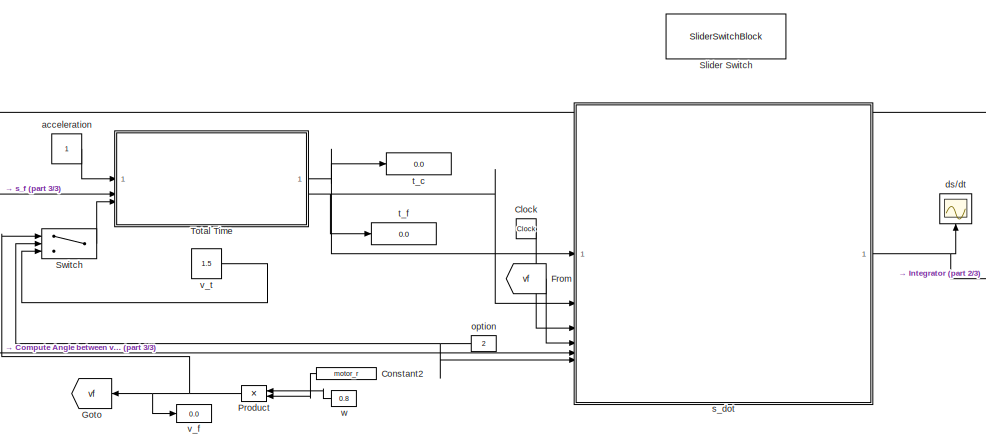
[diagram: root canvas - part 1/3, center side, full height]
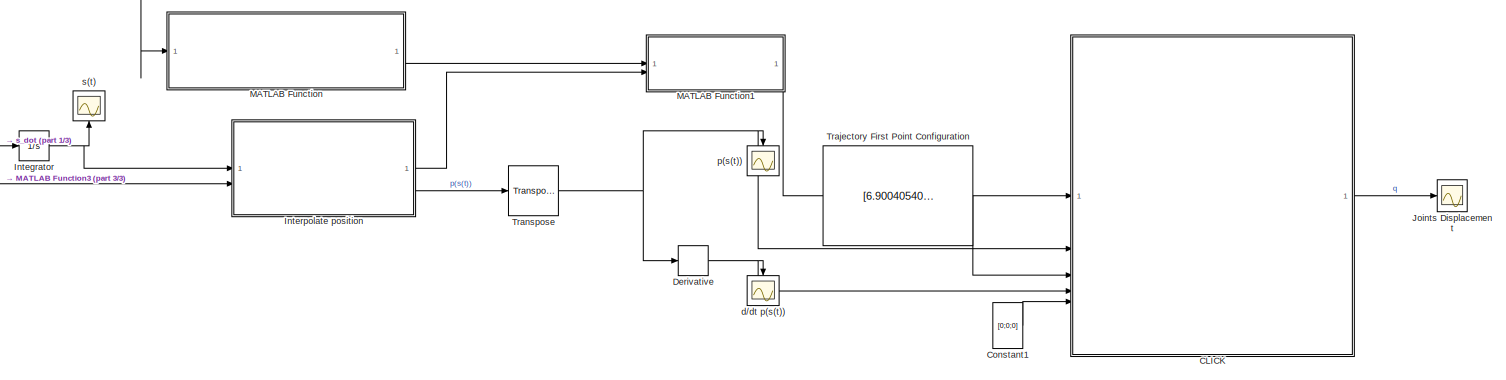
[diagram: root canvas - part 2/3, middle right region]
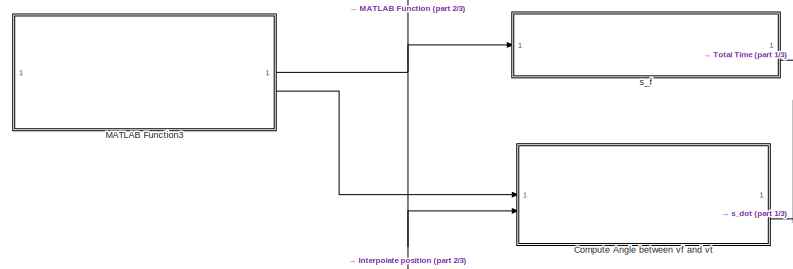
[diagram: root canvas - part 3/3, middle left region]
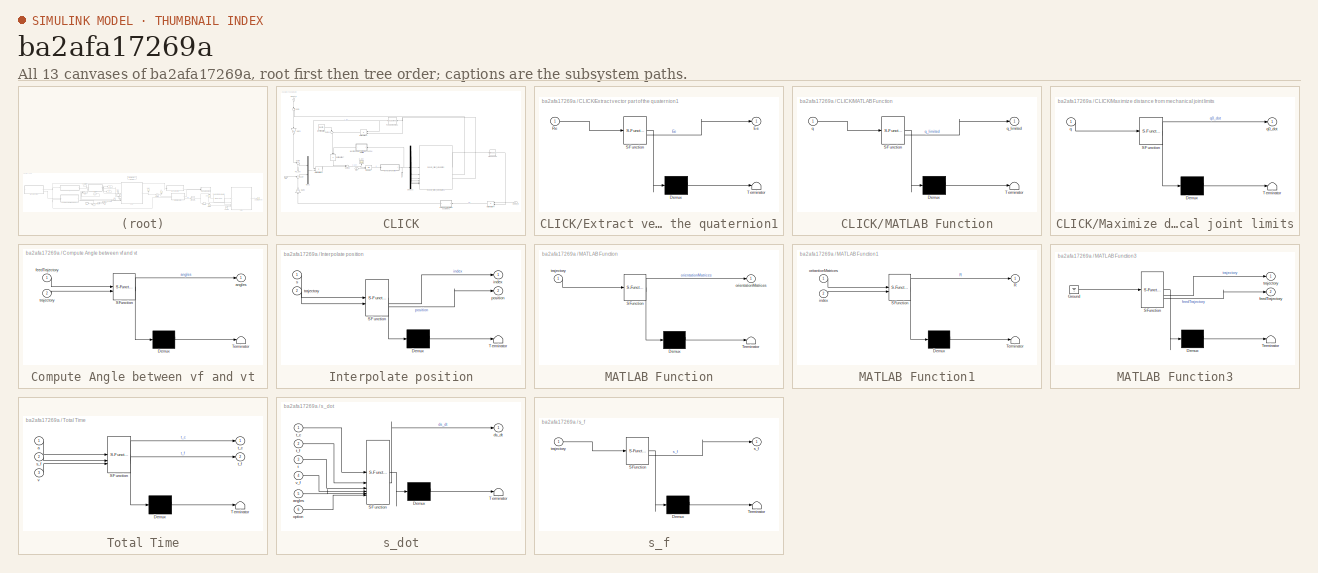
[diagram: thumbnail index - all 13 canvases of the model, root first then tree order]
MODEL slx_ba2afa17269a
KIND model
CONFIG AbsTol = auto
CONFIG EnableMultiTasking = off
CONFIG FixedStep = auto
CONFIG MaxStep = 1e-3
CONFIG MinStep = 1e-5
CONFIG RelTol = 1e-3
CONFIG SampleTimeConstraint = Unconstrained
CONFIG SolverName = ode45
CONFIG StartTime = 0.0
CONFIG StopTime = 16.85
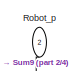
[diagram: CLICK - part 1/4, top left region]
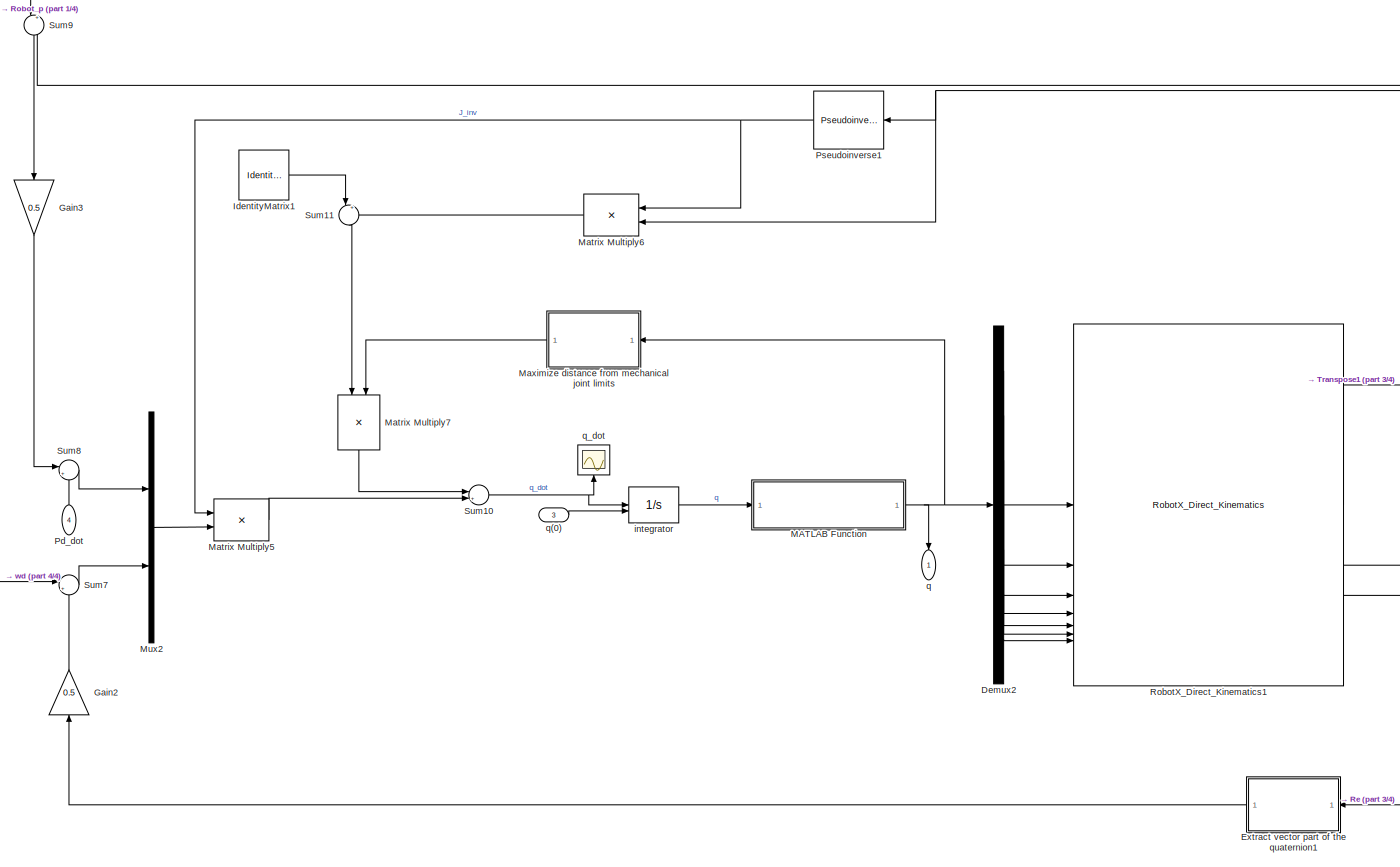
[diagram: CLICK - part 2/4, center side, full height]
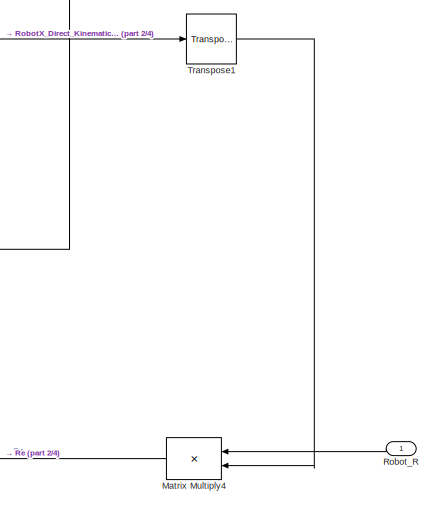
[diagram: CLICK - part 3/4, bottom right region]
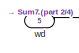
[diagram: CLICK - part 4/4, bottom left region]
BLOCK [SubSystem] CLICK
BLOCK [Demux] CLICK/Demux2
  Outputs = 7
BLOCK [SubSystem] CLICK/Extract vector part of the quaternion1
  ErrorFcn = Stateflow.Translate.translate
  NameLocation = top
  PermitHierarchicalResolution = ExplicitOnly
  SFBlockType = MATLAB Function
  TreatAsAtomicUnit = on
BLOCK [Demux] CLICK/Extract vector part of the quaternion1/ Demux 
  Outputs = 1
BLOCK [S-Function] CLICK/Extract vector part of the quaternion1/ SFunction 
  EnableBusSupport = on
  FunctionName = sf_sfun
  PortCounts = [1 2]
  SFcnIsStateOwnerBlock = off
  SFunctionDeploymentMode = off
  Tag = Stateflow S-Function 2
BLOCK [Terminator] CLICK/Extract vector part of the quaternion1/ Terminator 
BLOCK [Outport] CLICK/Extract vector part of the quaternion1/Ee
BLOCK [Inport] CLICK/Extract vector part of the quaternion1/Re
BLOCK [Gain] CLICK/Gain2
  Gain = 0.5
  NameLocation = right
BLOCK [Gain] CLICK/Gain3
  Gain = 0.5
  NameLocation = right
BLOCK [IdentityMatrix] CLICK/IdentityMatrix1
  OutputDimensions = 7
BLOCK [SubSystem] CLICK/MATLAB Function
  ErrorFcn = Stateflow.Translate.translate
  PermitHierarchicalResolution = ExplicitOnly
  SFBlockType = MATLAB Function
  TreatAsAtomicUnit = on
BLOCK [Demux] CLICK/MATLAB Function/ Demux 
  Outputs = 1
BLOCK [S-Function] CLICK/MATLAB Function/ SFunction 
  EnableBusSupport = on
  FunctionName = sf_sfun
  PortCounts = [1 2]
  SFcnIsStateOwnerBlock = off
  SFunctionDeploymentMode = off
  Tag = Stateflow S-Function 10
BLOCK [Terminator] CLICK/MATLAB Function/ Terminator 
BLOCK [Inport] CLICK/MATLAB Function/q
BLOCK [Outport] CLICK/MATLAB Function/q_limited
BLOCK [Product] CLICK/Matrix Multiply4
  Multiplication = Matrix(*)
BLOCK [Product] CLICK/Matrix Multiply5
  Multiplication = Matrix(*)
BLOCK [Product] CLICK/Matrix Multiply6
  Multiplication = Matrix(*)
BLOCK [Product] CLICK/Matrix Multiply7
  Multiplication = Matrix(*)
  NameLocation = left
BLOCK [SubSystem] CLICK/Maximize distance from mechanical joint limits
  ErrorFcn = Stateflow.Translate.translate
  NameLocation = top
  PermitHierarchicalResolution = ExplicitOnly
  SFBlockType = MATLAB Function
  TreatAsAtomicUnit = on
BLOCK [Demux] CLICK/Maximize distance from mechanical joint limits/ Demux 
  Outputs = 1
BLOCK [S-Function] CLICK/Maximize distance from mechanical joint limits/ SFunction 
  EnableBusSupport = on
  FunctionName = sf_sfun
  PortCounts = [1 2]
  SFcnIsStateOwnerBlock = off
  SFunctionDeploymentMode = off
  Tag = Stateflow S-Function 7
BLOCK [Terminator] CLICK/Maximize distance from mechanical joint limits/ Terminator 
BLOCK [Inport] CLICK/Maximize distance from mechanical joint limits/q
BLOCK [Outport] CLICK/Maximize distance from mechanical joint limits/q0_dot
BLOCK [Mux] CLICK/Mux2
  DisplayOption = bar
  Inputs = 2
BLOCK [Inport] CLICK/Pd_dot
  NameLocation = right
  Port = 4
BLOCK [Reference] CLICK/Pseudoinverse1  REF=dspinverses/Pseudoinverse
  SourceBlock = dspinverses/Pseudoinverse
  SourceType = Pseudoinverse
BLOCK [Reference] CLICK/RobotX_Direct_Kinematics1  REF=RobotX_Lib/RobotX_Direct_Kinematics
  SourceBlock = RobotX_Lib/RobotX_Direct_Kinematics
  SourceType = SubSystem
BLOCK [Inport] CLICK/Robot_R
  NameLocation = top
BLOCK [Inport] CLICK/Robot_p
  NameLocation = left
  Port = 2
BLOCK [Sum] CLICK/Sum10
  Inputs = |++
BLOCK [Sum] CLICK/Sum11
  Inputs = |+-
  NameLocation = right
BLOCK [Sum] CLICK/Sum7
  Inputs = |++
BLOCK [Sum] CLICK/Sum8
  Inputs = |++
  NameLocation = top
BLOCK [Sum] CLICK/Sum9
  Inputs = |+-
  NameLocation = right
BLOCK [Reference] CLICK/Transpose1  REF=matrix_library/Transpose
  LibrarySourceBlock = simulink/Matrix\nOperations/Transpose
  SourceBlock = matrix_library/Transpose
  SourceType = Transpose
BLOCK [Integrator] CLICK/integrator
  InitialConditionSource = external
BLOCK [Outport] CLICK/q
  NameLocation = left
BLOCK [Inport] CLICK/q(0)
  Port = 3
BLOCK [Scope] CLICK/q_dot
  Floating = off
  NameLocation = right
  NumInputPorts = 1
  ScopeSpecificationString = Simulink.scopes.TimeScopeBlockCfg('CurrentConfiguration', extmgr.ConfigurationSet(extmgr.Configuration('Core','General UI',true),extmgr.Configuration('Core','Source UI',true),extmgr.Configuration('Sources','WiredSimulink',true,'DataLoggingVariableName','ScopeData2'),extmgr.Configuration('Visuals','Time Domain',true,'SerializedDisplays',{struct('MinYLimReal','-746083.85388','MaxYLimReal','696630.19...<+1581ch>
BLOCK [Inport] CLICK/wd
  Port = 5
BLOCK [Clock] Clock
BLOCK [SubSystem] Compute Angle between vf and vt
  ErrorFcn = Stateflow.Translate.translate
  PermitHierarchicalResolution = ExplicitOnly
  SFBlockType = MATLAB Function
  TreatAsAtomicUnit = on
BLOCK [Demux] Compute Angle between vf and vt/ Demux 
  Outputs = 1
BLOCK [S-Function] Compute Angle between vf and vt/ SFunction 
  EnableBusSupport = on
  FunctionName = sf_sfun
  PortCounts = [2 2]
  SFcnIsStateOwnerBlock = off
  SFunctionDeploymentMode = off
  Tag = Stateflow S-Function 4
BLOCK [Terminator] Compute Angle between vf and vt/ Terminator 
BLOCK [Outport] Compute Angle between vf and vt/angles
BLOCK [Inport] Compute Angle between vf and vt/feedTrajectory
BLOCK [Inport] Compute Angle between vf and vt/trajectory
  Port = 2
BLOCK [Constant] Constant1
  Value = [0;0;0]
  VectorParams1D = off
BLOCK [Constant] Constant2
  NameLocation = top
  Value = motor_r
BLOCK [Derivative] Derivative
BLOCK [From] From
  GotoTag = vf
BLOCK [Goto] Goto
  GotoTag = vf
  NameLocation = top
BLOCK [Integrator] Integrator
BLOCK [SubSystem] Interpolate position
  ErrorFcn = Stateflow.Translate.translate
  PermitHierarchicalResolution = ExplicitOnly
  SFBlockType = MATLAB Function
  TreatAsAtomicUnit = on
BLOCK [Demux] Interpolate position/ Demux 
  Outputs = 1
BLOCK [S-Function] Interpolate position/ SFunction 
  EnableBusSupport = on
  FunctionName = sf_sfun
  PortCounts = [2 3]
  SFcnIsStateOwnerBlock = off
  SFunctionDeploymentMode = off
  Tag = Stateflow S-Function 1
BLOCK [Terminator] Interpolate position/ Terminator 
BLOCK [Outport] Interpolate position/index
BLOCK [Outport] Interpolate position/position
  Port = 2
BLOCK [Inport] Interpolate position/s
BLOCK [Inport] Interpolate position/trajectory
  Port = 2
BLOCK [Scope] Joints Displacement
  Floating = off
  NumInputPorts = 1
  ScopeSpecificationString = Simulink.scopes.TimeScopeBlockCfg('CurrentConfiguration', extmgr.ConfigurationSet(extmgr.Configuration('Core','General UI',true),extmgr.Configuration('Core','Source UI',true),extmgr.Configuration('Sources','WiredSimulink',true,'DataLoggingVariableName','ScopeData4'),extmgr.Configuration('Visuals','Time Domain',true,'SerializedDisplays',{struct('MinYLimReal','-89.46409','MaxYLimReal','17.61627','YL...<+1765ch>
BLOCK [SubSystem] MATLAB Function
  ErrorFcn = Stateflow.Translate.translate
  PermitHierarchicalResolution = ExplicitOnly
  SFBlockType = MATLAB Function
  TreatAsAtomicUnit = on
BLOCK [Demux] MATLAB Function/ Demux 
  Outputs = 1
BLOCK [S-Function] MATLAB Function/ SFunction 
  EnableBusSupport = on
  FunctionName = sf_sfun
  PortCounts = [1 2]
  SFcnIsStateOwnerBlock = off
  SFunctionDeploymentMode = off
  Tag = Stateflow S-Function 3
BLOCK [Terminator] MATLAB Function/ Terminator 
BLOCK [Outport] MATLAB Function/orientationMatrices
BLOCK [Inport] MATLAB Function/trajectory
BLOCK [SubSystem] MATLAB Function1
  ErrorFcn = Stateflow.Translate.translate
  PermitHierarchicalResolution = ExplicitOnly
  SFBlockType = MATLAB Function
  TreatAsAtomicUnit = on
BLOCK [Demux] MATLAB Function1/ Demux 
  Outputs = 1
BLOCK [S-Function] MATLAB Function1/ SFunction 
  EnableBusSupport = on
  FunctionName = sf_sfun
  PortCounts = [2 2]
  SFcnIsStateOwnerBlock = off
  SFunctionDeploymentMode = off
  Tag = Stateflow S-Function 9
BLOCK [Terminator] MATLAB Function1/ Terminator 
BLOCK [Outport] MATLAB Function1/R
BLOCK [Inport] MATLAB Function1/index
  Port = 2
BLOCK [Inport] MATLAB Function1/oritantionMatrices
BLOCK [SubSystem] MATLAB Function3
  ErrorFcn = Stateflow.Translate.translate
  PermitHierarchicalResolution = ExplicitOnly
  SFBlockType = MATLAB Function
  TreatAsAtomicUnit = on
BLOCK [Demux] MATLAB Function3/ Demux 
  Outputs = 1
BLOCK [Ground] MATLAB Function3/ Ground 
BLOCK [S-Function] MATLAB Function3/ SFunction 
  EnableBusSupport = on
  FunctionName = sf_sfun
  PortCounts = [1 3]
  SFcnIsStateOwnerBlock = off
  SFunctionDeploymentMode = off
  Tag = Stateflow S-Function 11
BLOCK [Terminator] MATLAB Function3/ Terminator 
BLOCK [Outport] MATLAB Function3/feedTrajectory
  Port = 2
BLOCK [Outport] MATLAB Function3/trajectory
BLOCK [Product] Product
  NameLocation = top
BLOCK [SliderSwitchBlock] Slider Switch
BLOCK [Switch] Switch
  Criteria = u2 > Threshold
  InputSameDT = off
  SaturateOnIntegerOverflow = off
  Threshold = 1
BLOCK [SubSystem] Total Time
  ErrorFcn = Stateflow.Translate.translate
  PermitHierarchicalResolution = ExplicitOnly
  SFBlockType = MATLAB Function
  TreatAsAtomicUnit = on
BLOCK [Demux] Total Time/ Demux 
  Outputs = 1
BLOCK [S-Function] Total Time/ SFunction 
  EnableBusSupport = on
  FunctionName = sf_sfun
  PortCounts = [3 3]
  SFcnIsStateOwnerBlock = off
  SFunctionDeploymentMode = off
  Tag = Stateflow S-Function 6
BLOCK [Terminator] Total Time/ Terminator 
BLOCK [Inport] Total Time/a
BLOCK [Inport] Total Time/s_f
  Port = 2
BLOCK [Outport] Total Time/t_c
BLOCK [Outport] Total Time/t_f
  Port = 2
BLOCK [Inport] Total Time/v
  Port = 3
BLOCK [Constant] Trajectory First Point Configuration
  Value = [6.9004054003954; -2.9670597283904; -1.5692388175522; 0.11892147756857; 3.1666493237733; 0.13585718574299; 6.1086523819802]
  VectorParams1D = off
BLOCK [Reference] Transpose  REF=matrix_library/Transpose
  LibrarySourceBlock = simulink/Matrix\nOperations/Transpose
  SourceBlock = matrix_library/Transpose
  SourceType = Transpose
BLOCK [Constant] acceleration
BLOCK [Scope] d//dt p(s(t))
  Floating = off
  NameLocation = right
  NumInputPorts = 1
  ScopeSpecificationString = Simulink.scopes.TimeScopeBlockCfg('CurrentConfiguration', extmgr.ConfigurationSet(extmgr.Configuration('Core','General UI',true),extmgr.Configuration('Core','Source UI',true),extmgr.Configuration('Sources','WiredSimulink',true,'DataLoggingVariableName','ScopeData1'),extmgr.Configuration('Visuals','Time Domain',true,'SerializedDisplays',{struct('MinYLimReal','-5.13432','MaxYLimReal','9.63019','YLab...<+1677ch>
BLOCK [Scope] ds//dt
  Floating = off
  NameLocation = right
  NumInputPorts = 1
  ScopeSpecificationString = Simulink.scopes.TimeScopeBlockCfg('CurrentConfiguration', extmgr.ConfigurationSet(extmgr.Configuration('Core','General UI',true),extmgr.Configuration('Core','Source UI',true),extmgr.Configuration('Sources','WiredSimulink',true,'DataLoggingVariableName','ScopeData2'),extmgr.Configuration('Visuals','Time Domain',true,'SerializedDisplays',{struct('MinYLimReal','-1.00161','MaxYLimReal','9.01453','YLab...<+1551ch>
BLOCK [Constant] option
  NameLocation = top
  Value = 2
BLOCK [Scope] p(s(t))
  Floating = off
  NameLocation = right
  NumInputPorts = 1
  ScopeSpecificationString = Simulink.scopes.TimeScopeBlockCfg('CurrentConfiguration', extmgr.ConfigurationSet(extmgr.Configuration('Core','General UI',true),extmgr.Configuration('Core','Source UI',true),extmgr.Configuration('Sources','WiredSimulink',true,'DataLoggingVariableName','ScopeData3'),extmgr.Configuration('Visuals','Time Domain',true,'SerializedDisplays',{struct('MinYLimReal','-3.30978','MaxYLimReal','17.14801','YLa...<+1678ch>
BLOCK [Scope] s(t)
  Floating = off
  NameLocation = right
  NumInputPorts = 1
  ScopeSpecificationString = Simulink.scopes.TimeScopeBlockCfg('CurrentConfiguration', extmgr.ConfigurationSet(extmgr.Configuration('Core','General UI',true),extmgr.Configuration('Core','Source UI',true),extmgr.Configuration('Sources','WiredSimulink',true),extmgr.Configuration('Visuals','Time Domain',true,'SerializedDisplays',{struct('MinYLimReal','-3.44095','MaxYLimReal','30.96851','YLabelReal','','MinYLimMag','0.00000','Max...<+1544ch>
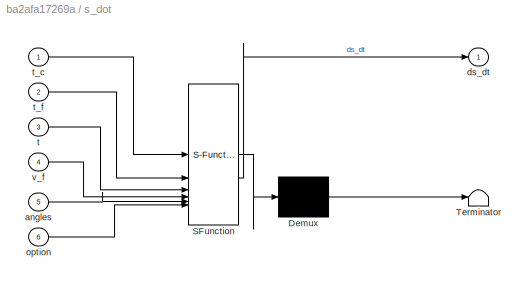
BLOCK [SubSystem] s_dot
  ErrorFcn = Stateflow.Translate.translate
  PermitHierarchicalResolution = ExplicitOnly
  SFBlockType = MATLAB Function
  TreatAsAtomicUnit = on
BLOCK [Demux] s_dot/ Demux 
  Outputs = 1
BLOCK [S-Function] s_dot/ SFunction 
  EnableBusSupport = on
  FunctionName = sf_sfun
  PortCounts = [6 2]
  SFcnIsStateOwnerBlock = off
  SFunctionDeploymentMode = off
  Tag = Stateflow S-Function 8
BLOCK [Terminator] s_dot/ Terminator 
BLOCK [Inport] s_dot/angles
  Port = 5
BLOCK [Outport] s_dot/ds_dt
BLOCK [Inport] s_dot/option
  Port = 6
BLOCK [Inport] s_dot/t
  Port = 3
BLOCK [Inport] s_dot/t_c
BLOCK [Inport] s_dot/t_f
  Port = 2
BLOCK [Inport] s_dot/v_f
  Port = 4
BLOCK [SubSystem] s_f
  ErrorFcn = Stateflow.Translate.translate
  PermitHierarchicalResolution = ExplicitOnly
  SFBlockType = MATLAB Function
  TreatAsAtomicUnit = on
BLOCK [Demux] s_f/ Demux 
  Outputs = 1
BLOCK [S-Function] s_f/ SFunction 
  EnableBusSupport = on
  FunctionName = sf_sfun
  PortCounts = [1 2]
  SFcnIsStateOwnerBlock = off
  SFunctionDeploymentMode = off
  Tag = Stateflow S-Function 5
BLOCK [Terminator] s_f/ Terminator 
BLOCK [Outport] s_f/s_f
  VectorParamsAs1DForOutWhenUnconnected = off
BLOCK [Inport] s_f/trajectory
BLOCK [Display] t_c
  Decimation = 1
BLOCK [Display] t_f
  Decimation = 1
BLOCK [Display] v_f
  Decimation = 1
BLOCK [Constant] v_t
  Value = 1.5
BLOCK [Constant] w
  NameLocation = top
  Value = 0.8
LINE CLICK/Demux2:1 -> CLICK/RobotX_Direct_Kinematics1:1
LINE CLICK/Demux2:2 -> CLICK/RobotX_Direct_Kinematics1:2
LINE CLICK/Demux2:3 -> CLICK/RobotX_Direct_Kinematics1:3
LINE CLICK/Demux2:4 -> CLICK/RobotX_Direct_Kinematics1:4
LINE CLICK/Demux2:5 -> CLICK/RobotX_Direct_Kinematics1:5
LINE CLICK/Demux2:6 -> CLICK/RobotX_Direct_Kinematics1:6
LINE CLICK/Demux2:7 -> CLICK/RobotX_Direct_Kinematics1:7
LINE CLICK/Extract vector part of the quaternion1:1 -> CLICK/Gain2:1
LINE CLICK/Gain2:1 -> CLICK/Sum7:2
LINE CLICK/Gain3:1 -> CLICK/Sum8:1
LINE CLICK/IdentityMatrix1:1 -> CLICK/Sum11:1
NET CLICK/MATLAB Function:1 -> CLICK/Demux2:1, CLICK/Maximize distance from mechanical joint limits:1, CLICK/q:1
LINE CLICK/Matrix Multiply4:1 -> CLICK/Extract vector part of the quaternion1:1
LINE CLICK/Matrix Multiply5:1 -> CLICK/Sum10:2
LINE CLICK/Matrix Multiply6:1 -> CLICK/Sum11:2
LINE CLICK/Matrix Multiply7:1 -> CLICK/Sum10:1
LINE CLICK/Maximize distance from mechanical joint limits:1 -> CLICK/Matrix Multiply7:2
LINE CLICK/Mux2:1 -> CLICK/Matrix Multiply5:2
LINE CLICK/Pd_dot:1 -> CLICK/Sum8:2
NET CLICK/Pseudoinverse1:1 -> CLICK/Matrix Multiply5:1, CLICK/Matrix Multiply6:1
LINE CLICK/RobotX_Direct_Kinematics1:1 -> CLICK/Transpose1:1
LINE CLICK/RobotX_Direct_Kinematics1:2 -> CLICK/Sum9:2
NET CLICK/RobotX_Direct_Kinematics1:3 -> CLICK/Matrix Multiply6:2, CLICK/Pseudoinverse1:1
LINE CLICK/Robot_R:1 -> CLICK/Matrix Multiply4:1
LINE CLICK/Robot_p:1 -> CLICK/Sum9:1
NET CLICK/Sum10:1 -> CLICK/integrator:1, CLICK/q_dot:1
LINE CLICK/Sum11:1 -> CLICK/Matrix Multiply7:1
LINE CLICK/Sum7:1 -> CLICK/Mux2:2
LINE CLICK/Sum8:1 -> CLICK/Mux2:1
LINE CLICK/Sum9:1 -> CLICK/Gain3:1
LINE CLICK/Transpose1:1 -> CLICK/Matrix Multiply4:2
LINE CLICK/integrator:1 -> CLICK/MATLAB Function:1
LINE CLICK/q(0):1 -> CLICK/integrator:2
LINE CLICK/wd:1 -> CLICK/Sum7:1
LINE CLICK:1 -> Joints Displacement:1
LINE Clock:1 -> s_dot:3
LINE Compute Angle between vf and vt:1 -> s_dot:5
LINE Constant1:1 -> CLICK:5
LINE Constant2:1 -> Product:2
NET Derivative:1 -> CLICK:4, d//dt p(s(t)):1
LINE From:1 -> s_dot:4
NET Integrator:1 -> Interpolate position:1, s(t):1
LINE Interpolate position:1 -> MATLAB Function1:2
LINE Interpolate position:2 -> Transpose:1
LINE MATLAB Function1:1 -> CLICK:1
NET MATLAB Function3:1 -> Compute Angle between vf and vt:2, Interpolate position:2, MATLAB Function:1, s_f:1
LINE MATLAB Function3:2 -> Compute Angle between vf and vt:1
LINE MATLAB Function:1 -> MATLAB Function1:1
NET Product:1 -> Goto:1, Switch:1, v_f:1
LINE Switch:1 -> Total Time:3
NET Total Time:1 -> s_dot:1, t_c:1
NET Total Time:2 -> s_dot:2, t_f:1
LINE Trajectory First Point Configuration:1 -> CLICK:3
NET Transpose:1 -> CLICK:2, Derivative:1, p(s(t)):1
LINE acceleration:1 -> Total Time:1
NET option:1 -> Switch:2, s_dot:6
NET s_dot:1 -> Integrator:1, ds//dt:1
LINE s_f:1 -> Total Time:2
LINE v_t:1 -> Switch:3
LINE w:1 -> Product:1
note: NET lines group one-source signal fan-out (src -> all destinations, sorted); 1:1 wires keep LINE
CHART MATLAB Function3 states=1 transitions=1
  STATE_LABEL 'eML_blk_kernel()'
  STATE_LABEL "SCRIPT:\nfunction [trajectory, feedTrajectory] = loadTrajectories()\n    % Load trajectories from the MAT-file\n    data = load('trajectoryData.mat');\n    trajectory = data.trajectory;\n\n    data = load('feedTrajectoryData.mat');\n    feedTrajectory = data.feedTrajectory;\nend"
CHART Interpolate position states=1 transitions=1
  STATE_LABEL 'eML_blk_kernel()'
  STATE_LABEL "SCRIPT:\nfunction [index, position] = interpolatePosition(s, trajectory)\n    cumulativeDistance = computeCumulativeDistance(trajectory);\n    \n    % Interpolate position\n    position = interp1(cumulativeDistance, trajectory, s, 'linear', 'extrap');\n\n    % Find the nearest index in the cumulative distance array\n    [~, index] = min(abs(cumulativeDistance - s));\nend\n\nfunction cumulativeDistance = comp...<+634ch>"
CHART CLICK/Extract vector part of the quaternion1 states=1 transitions=1
  STATE_LABEL 'eML_blk_kernel()'
  STATE_LABEL 'SCRIPT:\nfunction Ee = fcn(Re)\n    Ee = zeros(3, 1);\n    aux = (Re(1,1) + Re(2,2) + Re(3,3) - 1)/2;\n\n    % Clamp aux to the range [-1, 1]\n    aux = max(-1, min(aux, 1));\n\n    v = acos(aux);\n\n    if sin(v) ~= 0\n        rx = Re(3, 2) - Re(2, 3);\n        ry = Re(1, 3) - Re(3, 1);\n        rz = Re(2, 1) - Re(1, 2);\n        Ee = 1/(2*sin(v)) * [rx; ry; rz];\n    end\nend\n'
CHART MATLAB Function states=1 transitions=1
  STATE_LABEL 'eML_blk_kernel()'
  STATE_LABEL 'SCRIPT:\nfunction orientationMatrices = computeOrientationMatrices(trajectory)\n    % Initialize the matrices\n    numPoints = size(trajectory, 1);\n    orientationMatrices = zeros(3, 3, numPoints);\n\n    % Iterate through each point in the trajectory\n    for k = 1:numPoints-1\n        % Compute tangent vector at current point\n        tangent_vector = trajectory(k+1, :) - trajectory(k, :);\n\n        % Ch...<+1233ch>'
CHART Compute Angle between vf and vt states=1 transitions=1
  STATE_LABEL 'eML_blk_kernel()'
  STATE_LABEL 'SCRIPT:\nfunction angles = computeAnglesBetweenTrajectories(feedTrajectory, trajectory)\n    % Compute tangent vectors for each trajectory\n    tangent_vectors_feed = computeTangentVectors(feedTrajectory);\n    tangent_vectors = computeTangentVectors(trajectory);\n\n    % Compute angles between corresponding tangent vectors\n    angles = zeros(size(trajectory, 1), 1);\n    for i = 1:size(trajectory, 1)\n  ...<+1055ch>'
CHART s_f states=1 transitions=1
  STATE_LABEL 'eML_blk_kernel()'
  STATE_LABEL 'SCRIPT:\nfunction s_f = getTotalDistance(trajectory)\n    distances = sqrt(sum(diff(trajectory).^2, 2));\n    s_f = sum(distances);\nend\n'
CHART Total Time states=1 transitions=1
  STATE_LABEL 'eML_blk_kernel()'
  STATE_LABEL 'SCRIPT:\nfunction [t_c, t_f] = calculateTotalTime(a, s_f, v)\n    % Calculate time to reach maximum velocity (acceleration phase)\n    t_c = v / a;\n    \n    % Calculate distance covered during acceleration (and deceleration)\n    d_c = 1/2 * a * t_c^2;\n    \n    % Calculate distance covered at constant velocity\n    d_const = s_f - 2 * d_c;\n    \n    % Check if the distance for acceleration and decelerat...<+357ch>'
CHART CLICK/Maximize distance from mechanical joint limits states=1 transitions=1
  STATE_LABEL 'eML_blk_kernel()'
  STATE_LABEL 'SCRIPT:\nfunction q0_dot = fcn(q)\n    n = length(q);  % Number of elements in q\n\n    q_max = [350; deg2rad(170); deg2rad(45); deg2rad(156); deg2rad(185); deg2rad(120); deg2rad(350)];\n    q_min = [-350; deg2rad(-170); deg2rad(-190); deg2rad(-120); deg2rad(-185); deg2rad(-120); deg2rad(-350)];\n\n    q_dif = q_max - q_min;\n\n    % Manually derive the differentiation\n    w_diff = - (q - q_max) ./ (n * (q...<+50ch>'
CHART s_dot states=1 transitions=1
  STATE_LABEL 'eML_blk_kernel()'
  STATE_LABEL 'SCRIPT:\nfunction ds_dt = s_dot(t_c, t_f, t, v_f, angles, option)\n    ds_dt = zeros(size(t));\n    \n    if option == 1\n        % Handle constant speed case\n        v_t = v_f; % Assuming v_t is constant and equal to v_f\n        for i = 1:length(t)\n            if t(i) < 0\n                ds_dt(i) = 0;\n            elseif t(i) < t_c\n                ds_dt(i) = (v_t / t_c) * t(i);\n            elseif t(i) ...<+1445ch>'
CHART MATLAB Function1 states=1 transitions=1
  STATE_LABEL 'eML_blk_kernel()'
  STATE_LABEL 'SCRIPT:\nfunction R = getRotation(oritantionMatrices, index)\n    R = oritantionMatrices(:, :, index);\nend'
CHART CLICK/MATLAB Function states=1 transitions=1
  STATE_LABEL 'eML_blk_kernel()'
  STATE_LABEL 'SCRIPT:\nfunction q_limited = ApplyJointLimits(q)\n    q_max = [350; deg2rad(170); deg2rad(45); deg2rad(156); deg2rad(185); deg2rad(120); deg2rad(350)];\n    q_min = [-350; deg2rad(-170); deg2rad(-190); deg2rad(-120); deg2rad(-185); deg2rad(-120); deg2rad(-350)];\n    \n    q_limited = min(max(q, q_min), q_max);\nend\n'
CHART  states=0 transitions=0
CHART  states=0 transitions=0
CHART  states=0 transitions=0
CHART  states=0 transitions=0
CHART  states=0 transitions=0
CHART  states=0 transitions=0
CHART  states=0 transitions=0
CHART  states=0 transitions=0
CHART  states=0 transitions=0
CHART  states=0 transitions=0
CHART  states=0 transitions=0
